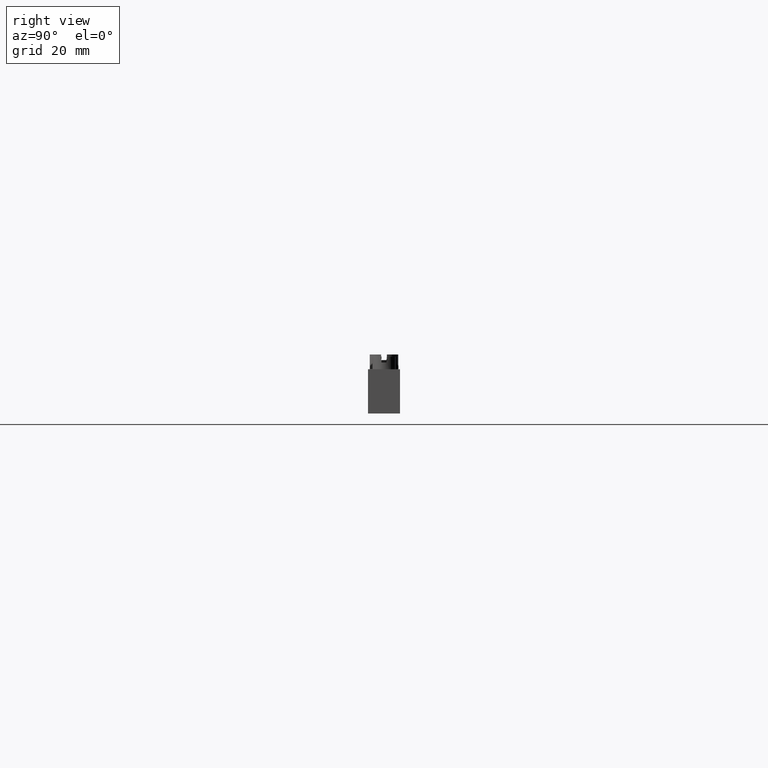
[diagram: clean part render]
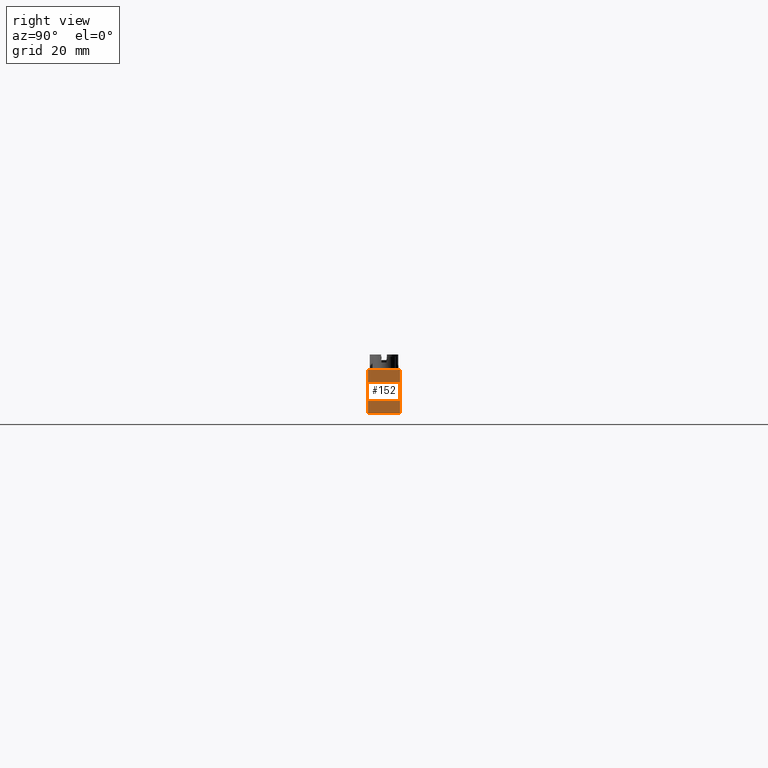
[diagram: same view with one face highlighted and labeled with its STEP entity id]
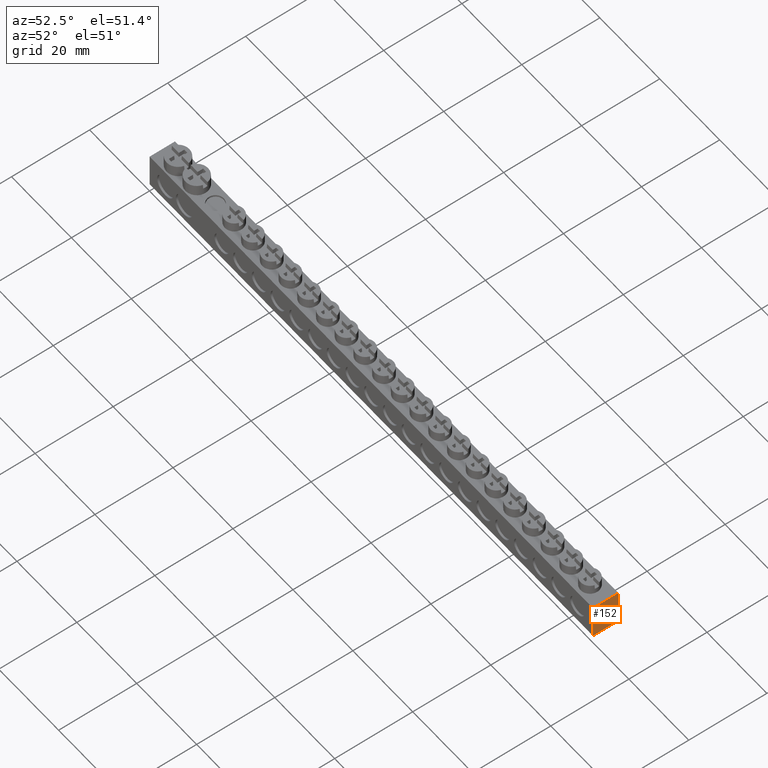
[diagram: same view with one face highlighted and labeled with its STEP entity id]
A machine part, right view. The second image highlights one B-rep face of the part: STEP entity #152.
A second angle (auxiliary view) of the same face is appended — the face is thin or edge-on in the first view.
In plain terms, the highlighted planar face has unit normal (-1, 0, 0).
Its self-contained STEP definition (entity closure, byte-faithful):
#115 = EDGE_CURVE ( 'NONE', #12271, #12274, #11476, .T. ) ;
#120 = EDGE_CURVE ( 'NONE', #12314, #12274, #11468, .T. ) ;
#135 = EDGE_CURVE ( 'NONE', #12281, #12271, #11523, .T. ) ;
#143 = EDGE_CURVE ( 'NONE', #12314, #12281, #11571, .T. ) ;
#152 = ADVANCED_FACE ( 'NONE', ( #11538 ), #11578, .F. ) ;
#1555 = CARTESIAN_POINT ( 'NONE',  ( 148.0500000000000100, 6.499999999999999100, 0.0000000000000000000 ) ) ;
#1565 = CARTESIAN_POINT ( 'NONE',  ( 148.0500000000000100, 6.500000000000000000, 9.000000000000001800 ) ) ;
#1579 = CARTESIAN_POINT ( 'NONE',  ( 148.0500000000000100, 0.0000000000000000000, 0.0000000000000000000 ) ) ;
#1637 = CARTESIAN_POINT ( 'NONE',  ( 148.0500000000000100, 0.0000000000000000000, 9.000000000000001800 ) ) ;
#2680 = EDGE_LOOP ( 'NONE', ( #7839, #7937, #7888, #7916 ) ) ;
#7531 = VECTOR ( 'NONE', #11545, 1000.000000000000000 ) ;
#7534 = AXIS2_PLACEMENT_3D ( 'NONE', #11542, #11543, #11562 ) ;
#7570 = VECTOR ( 'NONE', #11440, 1000.000000000000000 ) ;
#7581 = VECTOR ( 'NONE', #11459, 1000.000000000000000 ) ;
#7587 = VECTOR ( 'NONE', #11505, 1000.000000000000000 ) ;
#7839 = ORIENTED_EDGE ( 'NONE', *, *, #135, .F. ) ;
#7888 = ORIENTED_EDGE ( 'NONE', *, *, #120, .T. ) ;
#7916 = ORIENTED_EDGE ( 'NONE', *, *, #115, .F. ) ;
#7937 = ORIENTED_EDGE ( 'NONE', *, *, #143, .F. ) ;
#11440 = DIRECTION ( 'NONE',  ( 0.0000000000000000000, -1.000000000000000000, 0.0000000000000000000 ) ) ;
#11445 = CARTESIAN_POINT ( 'NONE',  ( 148.0500000000000100, 0.0000000000000000000, 0.0000000000000000000 ) ) ;
#11448 = CARTESIAN_POINT ( 'NONE',  ( 148.0500000000000100, 0.0000000000000000000, 9.000000000000001800 ) ) ;
#11459 = DIRECTION ( 'NONE',  ( 0.0000000000000000000, 0.0000000000000000000, -1.000000000000000000 ) ) ;
#11468 = LINE ( 'NONE', #11448, #7581 ) ;
#11476 = LINE ( 'NONE', #11445, #7570 ) ;
#11505 = DIRECTION ( 'NONE',  ( 0.0000000000000000000, 0.0000000000000000000, -1.000000000000000000 ) ) ;
#11523 = LINE ( 'NONE', #11526, #7587 ) ;
#11526 = CARTESIAN_POINT ( 'NONE',  ( 148.0500000000000100, 6.500000000000000000, 9.000000000000001800 ) ) ;
#11534 = CARTESIAN_POINT ( 'NONE',  ( 148.0500000000000100, 6.499999999999999100, 9.000000000000001800 ) ) ;
#11538 = FACE_OUTER_BOUND ( 'NONE', #2680, .T. ) ;
#11542 = CARTESIAN_POINT ( 'NONE',  ( 148.0500000000000100, 0.0000000000000000000, 9.000000000000001800 ) ) ;
#11543 = DIRECTION ( 'NONE',  ( -1.000000000000000000, 0.0000000000000000000, 0.0000000000000000000 ) ) ;
#11545 = DIRECTION ( 'NONE',  ( 0.0000000000000000000, 1.000000000000000000, 0.0000000000000000000 ) ) ;
#11562 = DIRECTION ( 'NONE',  ( 0.0000000000000000000, 0.0000000000000000000, 1.000000000000000000 ) ) ;
#11571 = LINE ( 'NONE', #11534, #7531 ) ;
#11578 = PLANE ( 'NONE',  #7534 ) ;
#12271 = VERTEX_POINT ( 'NONE', #1555 ) ;
#12274 = VERTEX_POINT ( 'NONE', #1579 ) ;
#12281 = VERTEX_POINT ( 'NONE', #1565 ) ;
#12314 = VERTEX_POINT ( 'NONE', #1637 ) ;